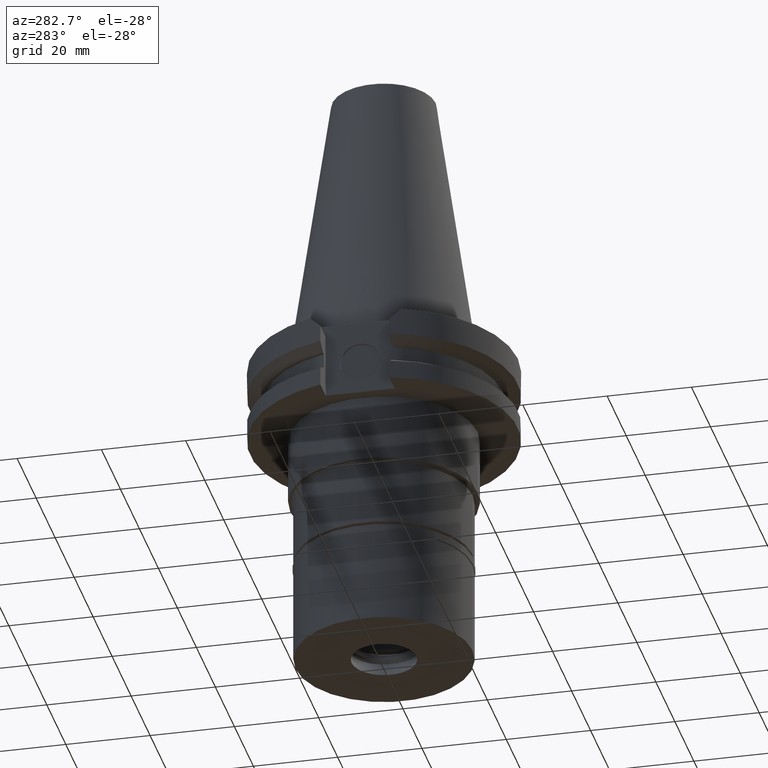
[diagram: clean part render]
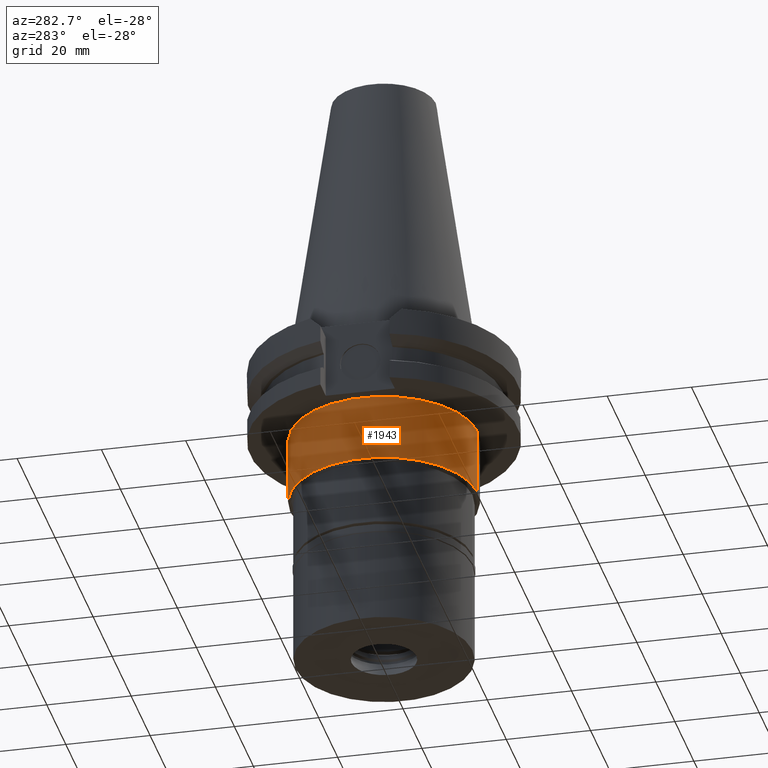
[diagram: same view with one face highlighted and labeled with its STEP entity id]
A machine part, auxiliary view. The second image highlights one B-rep face of the part: STEP entity #1943.
In plain terms, the highlighted cylindrical surface (partial cylindrical patch) has radius 22.225 mm, axis along (0, 0, -1).
Its self-contained STEP definition (entity closure, byte-faithful):
#61 = EDGE_CURVE ( 'NONE', #1980, #2752, #792, .T. ) ;
#127 = FACE_OUTER_BOUND ( 'NONE', #1688, .T. ) ;
#194 = CARTESIAN_POINT ( 'NONE',  ( 0.0000000000000000000, 0.0000000000000000000, -19.05000000000000071 ) ) ;
#219 = VERTEX_POINT ( 'NONE', #2570 ) ;
#246 = ORIENTED_EDGE ( 'NONE', *, *, #61, .T. ) ;
#342 = CARTESIAN_POINT ( 'NONE',  ( 0.0000000000000000000, -22.22500000000000142, -19.05000000000000071 ) ) ;
#596 = EDGE_CURVE ( 'NONE', #219, #1980, #769, .T. ) ;
#610 = AXIS2_PLACEMENT_3D ( 'NONE', #194, #3236, #2153 ) ;
#661 = CARTESIAN_POINT ( 'NONE',  ( 0.0000000000000000000, -22.22500000000000142, -35.00000000000000000 ) ) ;
#684 = CARTESIAN_POINT ( 'NONE',  ( 0.0000000000000000000, 22.22500000000000142, -35.00000000000000000 ) ) ;
#769 = LINE ( 'NONE', #1514, #2061 ) ;
#792 = CIRCLE ( 'NONE', #3289, 22.22500000000000142 ) ;
#867 = LINE ( 'NONE', #342, #1157 ) ;
#1049 = EDGE_CURVE ( 'NONE', #1057, #2752, #867, .T. ) ;
#1057 = VERTEX_POINT ( 'NONE', #2369 ) ;
#1157 = VECTOR ( 'NONE', #1893, 1000.000000000000000 ) ;
#1191 = CARTESIAN_POINT ( 'NONE',  ( 0.0000000000000000000, 0.0000000000000000000, 75.09749999999999659 ) ) ;
#1378 = ORIENTED_EDGE ( 'NONE', *, *, #1049, .F. ) ;
#1514 = CARTESIAN_POINT ( 'NONE',  ( 0.0000000000000000000, 22.22500000000000142, -19.05000000000000071 ) ) ;
#1527 = DIRECTION ( 'NONE',  ( 0.0000000000000000000, 0.0000000000000000000, -1.000000000000000000 ) ) ;
#1688 = EDGE_LOOP ( 'NONE', ( #246, #1378, #2480, #2503 ) ) ;
#1827 = CARTESIAN_POINT ( 'NONE',  ( 0.0000000000000000000, 0.0000000000000000000, -35.00000000000000000 ) ) ;
#1880 = DIRECTION ( 'NONE',  ( 0.0000000000000000000, 0.0000000000000000000, 1.000000000000000000 ) ) ;
#1893 = DIRECTION ( 'NONE',  ( 0.0000000000000000000, 0.0000000000000000000, -1.000000000000000000 ) ) ;
#1943 = ADVANCED_FACE ( 'NONE', ( #127 ), #2479, .T. ) ;
#1980 = VERTEX_POINT ( 'NONE', #684 ) ;
#2061 = VECTOR ( 'NONE', #1527, 1000.000000000000000 ) ;
#2114 = DIRECTION ( 'NONE',  ( 0.0000000000000000000, 1.000000000000000000, 0.0000000000000000000 ) ) ;
#2153 = DIRECTION ( 'NONE',  ( 0.0000000000000000000, -1.000000000000000000, 0.0000000000000000000 ) ) ;
#2369 = CARTESIAN_POINT ( 'NONE',  ( 0.0000000000000000000, -22.22500000000000142, -19.05000000000000071 ) ) ;
#2479 = CYLINDRICAL_SURFACE ( 'NONE', #2994, 22.22500000000000142 ) ;
#2480 = ORIENTED_EDGE ( 'NONE', *, *, #2744, .T. ) ;
#2490 = DIRECTION ( 'NONE',  ( 0.0000000000000000000, -1.000000000000000000, 0.0000000000000000000 ) ) ;
#2503 = ORIENTED_EDGE ( 'NONE', *, *, #596, .T. ) ;
#2570 = CARTESIAN_POINT ( 'NONE',  ( 0.0000000000000000000, 22.22500000000000142, -19.05000000000000071 ) ) ;
#2744 = EDGE_CURVE ( 'NONE', #1057, #219, #2784, .T. ) ;
#2752 = VERTEX_POINT ( 'NONE', #661 ) ;
#2784 = CIRCLE ( 'NONE', #610, 22.22500000000000142 ) ;
#2992 = DIRECTION ( 'NONE',  ( 0.0000000000000000000, 0.0000000000000000000, -1.000000000000000000 ) ) ;
#2994 = AXIS2_PLACEMENT_3D ( 'NONE', #1191, #2992, #2490 ) ;
#3236 = DIRECTION ( 'NONE',  ( 0.0000000000000000000, 0.0000000000000000000, -1.000000000000000000 ) ) ;
#3289 = AXIS2_PLACEMENT_3D ( 'NONE', #1827, #1880, #2114 ) ;